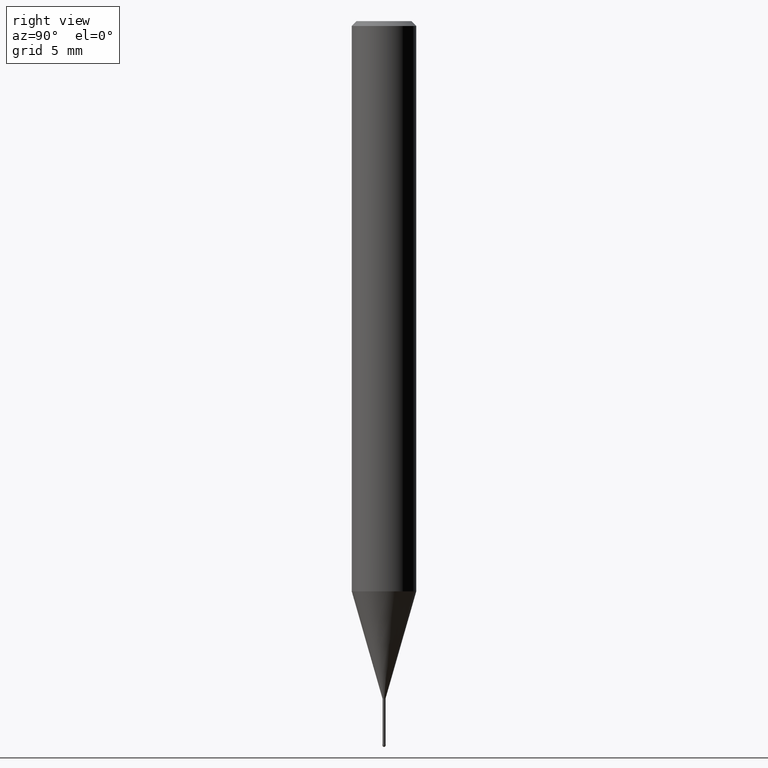
[diagram: clean part render]
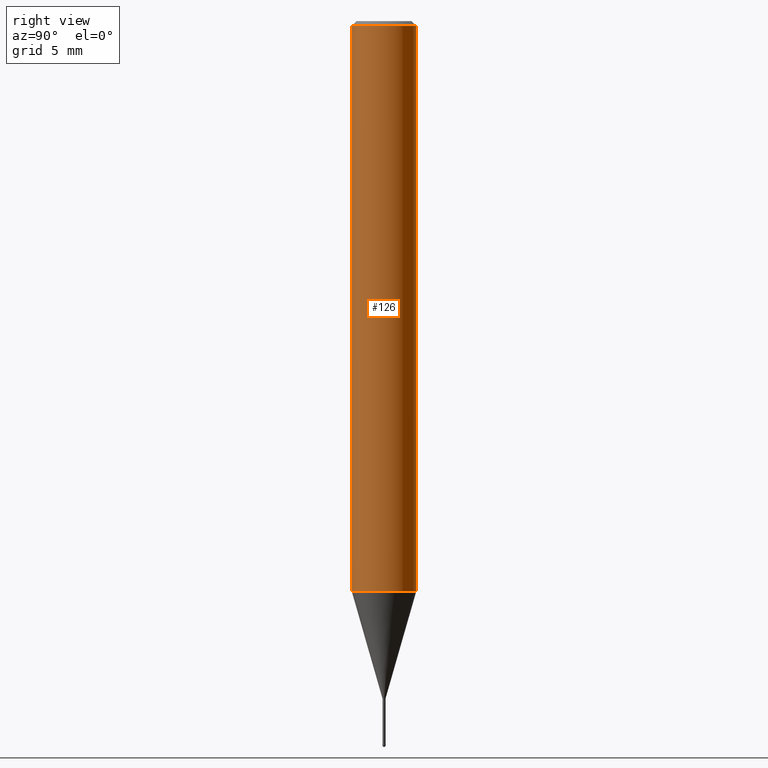
[diagram: same view with one face highlighted and labeled with its STEP entity id]
A machine part, right view. The second image highlights one B-rep face of the part: STEP entity #126.
In plain terms, the highlighted cylindrical surface (edge-blend (fillet) strip) has radius 2 mm, axis along (-0, -0, 1).
Its self-contained STEP definition (entity closure, byte-faithful):
#100=EDGE_CURVE('',#138,#166,#243,.T.);
#114=EDGE_CURVE('',#190,#138,#260,.T.);
#126=ADVANCED_FACE('',(#272),#273,.T.);
#138=VERTEX_POINT('',#287);
#162=EDGE_CURVE('',#166,#170,#315,.T.);
#166=VERTEX_POINT('',#320);
#170=VERTEX_POINT('',#324);
#190=VERTEX_POINT('',#345);
#198=EDGE_CURVE('',#190,#170,#354,.T.);
#243=CIRCLE('',#396,2.0);
#260=LINE('',#417,#418);
#272=FACE_OUTER_BOUND('',#432,.T.);
#273=CYLINDRICAL_SURFACE('',#433,2.0);
#287=CARTESIAN_POINT('',(0.0,2.0,-35.356));
#315=LINE('',#486,#487);
#320=CARTESIAN_POINT('',(2.44921270764475E-016,-2.0,-35.356));
#324=CARTESIAN_POINT('',(2.44921270764475E-016,-2.0,-0.299999999999997));
#345=CARTESIAN_POINT('',(0.0,2.0,-0.299999999999997));
#354=CIRCLE('',#533,2.0);
#396=AXIS2_PLACEMENT_3D('',#576,#577,#578);
#417=CARTESIAN_POINT('',(-2.44921270764475E-016,2.0,-17.828));
#418=VECTOR('',#599,1.0);
#432=EDGE_LOOP('',(#607,#608,#609,#610));
#433=AXIS2_PLACEMENT_3D('',#611,#612,#613);
#486=CARTESIAN_POINT('',(2.44921270764475E-016,-2.0,-17.828));
#487=VECTOR('',#673,1.0);
#533=AXIS2_PLACEMENT_3D('',#710,#711,#712);
#576=CARTESIAN_POINT('',(0.0,0.0,-35.356));
#577=DIRECTION('',(0.0,0.0,-1.0));
#578=DIRECTION('',(0.0,1.0,0.0));
#599=DIRECTION('',(0.0,0.0,-1.0));
#607=ORIENTED_EDGE('',*,*,#114,.F.);
#608=ORIENTED_EDGE('',*,*,#198,.T.);
#609=ORIENTED_EDGE('',*,*,#162,.F.);
#610=ORIENTED_EDGE('',*,*,#100,.F.);
#611=CARTESIAN_POINT('',(0.0,0.0,-17.828));
#612=DIRECTION('',(-0.0,-0.0,1.0));
#613=DIRECTION('',(0.0,1.0,0.0));
#673=DIRECTION('',(-0.0,-0.0,1.0));
#710=CARTESIAN_POINT('',(0.0,0.0,-0.299999999999997));
#711=DIRECTION('',(0.0,0.0,-1.0));
#712=DIRECTION('',(0.0,1.0,0.0));